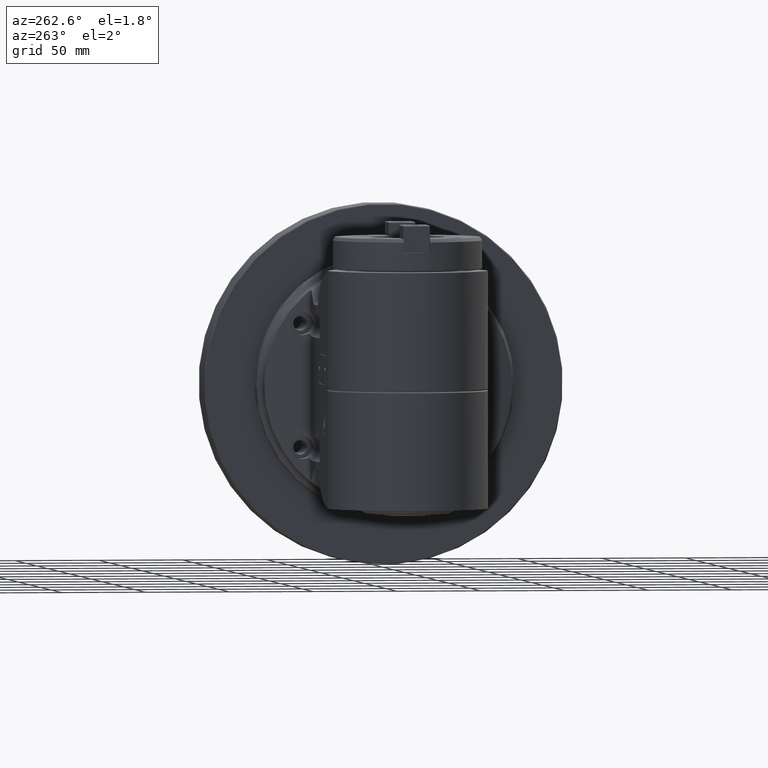
[diagram: clean part render]
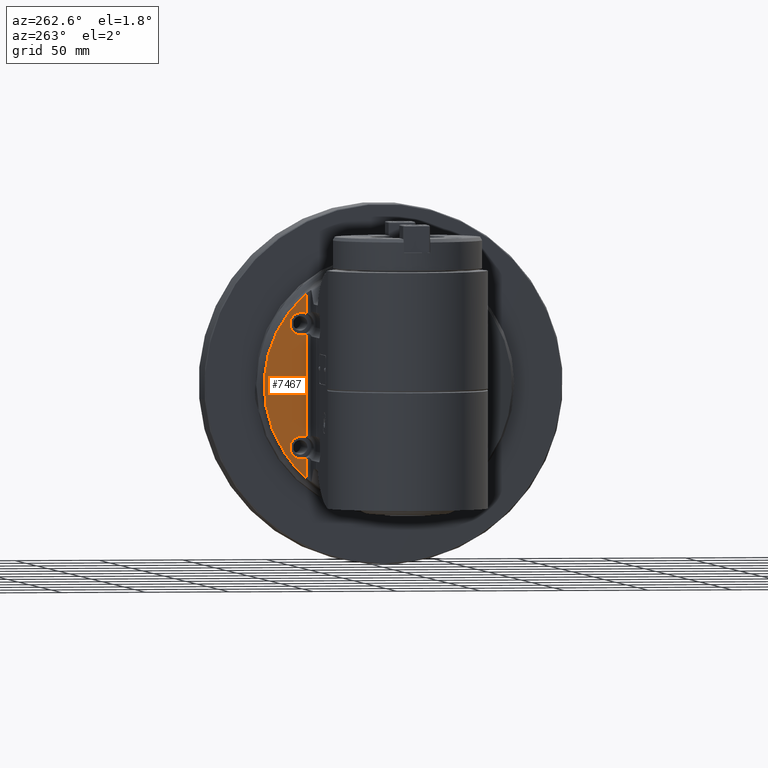
[diagram: same view with one face highlighted and labeled with its STEP entity id]
A machine part, auxiliary view. The second image highlights one B-rep face of the part: STEP entity #7467.
In plain terms, the highlighted planar face has unit normal (0.9397, -0.342, 0).
Its self-contained STEP definition (entity closure, byte-faithful):
#46=ELLIPSE('',#8143,78.7491551632184,74.);
#48=ELLIPSE('',#8173,7.18319996421249,6.75);
#49=ELLIPSE('',#8174,7.18319996421249,6.75);
#50=ELLIPSE('',#8175,7.18319996421249,6.75);
#51=ELLIPSE('',#8176,7.18319996421249,6.75);
#1047=FACE_OUTER_BOUND('',#1537,.T.);
#1537=EDGE_LOOP('',(#5622,#5623,#5624,#5625,#5626,#5627,#5628,#5629));
#2153=LINE('',#12510,#2652);
#2154=LINE('',#12532,#2653);
#2155=LINE('',#12537,#2654);
#2652=VECTOR('',#9542,11.37432940568);
#2653=VECTOR('',#9549,11.37432940568);
#2654=VECTOR('',#9554,60.72118127973);
#3268=VERTEX_POINT('',#12204);
#3269=VERTEX_POINT('',#12215);
#3304=VERTEX_POINT('',#12509);
#3306=VERTEX_POINT('',#12527);
#3307=VERTEX_POINT('',#12528);
#3308=VERTEX_POINT('',#12530);
#3309=VERTEX_POINT('',#12533);
#3310=VERTEX_POINT('',#12535);
#4109=EDGE_CURVE('',#3269,#3268,#46,.T.);
#4159=EDGE_CURVE('',#3304,#3268,#2153,.T.);
#4162=EDGE_CURVE('',#3306,#3307,#48,.T.);
#4163=EDGE_CURVE('',#3307,#3308,#49,.T.);
#4164=EDGE_CURVE('',#3269,#3308,#2154,.T.);
#4165=EDGE_CURVE('',#3304,#3309,#50,.T.);
#4166=EDGE_CURVE('',#3309,#3310,#51,.T.);
#4167=EDGE_CURVE('',#3306,#3310,#2155,.T.);
#5622=ORIENTED_EDGE('',*,*,#4162,.T.);
#5623=ORIENTED_EDGE('',*,*,#4163,.T.);
#5624=ORIENTED_EDGE('',*,*,#4164,.F.);
#5625=ORIENTED_EDGE('',*,*,#4109,.T.);
#5626=ORIENTED_EDGE('',*,*,#4159,.F.);
#5627=ORIENTED_EDGE('',*,*,#4165,.T.);
#5628=ORIENTED_EDGE('',*,*,#4166,.T.);
#5629=ORIENTED_EDGE('',*,*,#4167,.F.);
#7176=PLANE('',#8172);
#7467=ADVANCED_FACE('',(#1047),#7176,.F.);
#8143=AXIS2_PLACEMENT_3D('',#12216,#9475,#9476);
#8172=AXIS2_PLACEMENT_3D('',#12526,#9543,#9544);
#8173=AXIS2_PLACEMENT_3D('',#12529,#9545,#9546);
#8174=AXIS2_PLACEMENT_3D('',#12531,#9547,#9548);
#8175=AXIS2_PLACEMENT_3D('',#12534,#9550,#9551);
#8176=AXIS2_PLACEMENT_3D('',#12536,#9552,#9553);
#9475=DIRECTION('center_axis',(0.939692620785897,0.,-0.342020143325699));
#9476=DIRECTION('ref_axis',(0.342020143325699,-1.12785771207228E-16,0.939692620785897));
#9542=DIRECTION('',(3.794990426061E-14,1.,1.080713322977E-13));
#9543=DIRECTION('center_axis',(-0.939692620785897,0.,0.342020143325699));
#9544=DIRECTION('ref_axis',(-0.342020143325699,0.,-0.939692620785897));
#9545=DIRECTION('center_axis',(-0.939692620785897,0.,0.342020143325699));
#9546=DIRECTION('ref_axis',(0.342020143325699,0.,0.939692620785897));
#9547=DIRECTION('center_axis',(-0.939692620785897,0.,0.342020143325699));
#9548=DIRECTION('ref_axis',(0.342020143325699,0.,0.939692620785897));
#9549=DIRECTION('',(0.,1.,1.124441607722E-14));
#9550=DIRECTION('center_axis',(-0.939692620785897,0.,0.342020143325699));
#9551=DIRECTION('ref_axis',(0.342020143325699,0.,0.939692620785897));
#9552=DIRECTION('center_axis',(-0.939692620785897,0.,0.342020143325699));
#9553=DIRECTION('ref_axis',(0.342020143325699,0.,0.939692620785897));
#9554=DIRECTION('',(0.,1.,0.));
#12204=CARTESIAN_POINT('',(12.24206008372,54.43152261875,-50.1319194267));
#12215=CARTESIAN_POINT('',(12.24206008372,-54.43152261875,-50.1319194267));
#12216=CARTESIAN_POINT('Origin',(30.4885865416663,0.,0.));
#12509=CARTESIAN_POINT('',(12.24206008372,43.05719321307,-50.1319194267));
#12510=CARTESIAN_POINT('',(12.24206008372,43.05719321307,-50.1319194267));
#12526=CARTESIAN_POINT('Origin',(13.20000041402,-92.4000024,-47.5));
#12527=CARTESIAN_POINT('',(12.24206008372,-30.36059063987,-50.1319194267));
#12528=CARTESIAN_POINT('',(11.4071810082546,-43.45889192647,-52.4257308345));
#12529=CARTESIAN_POINT('Origin',(11.4071810082546,-36.70889192647,-52.4257308345));
#12530=CARTESIAN_POINT('',(12.24206008372,-43.05719321307,-50.1319194267));
#12531=CARTESIAN_POINT('Origin',(11.4071810082546,-36.70889192647,-52.4257308345));
#12532=CARTESIAN_POINT('',(12.24206008372,-54.43152261875,-50.1319194267));
#12533=CARTESIAN_POINT('',(11.4071810082546,29.95889192647,-52.4257308345));
#12534=CARTESIAN_POINT('Origin',(11.4071810082546,36.70889192647,-52.4257308345));
#12535=CARTESIAN_POINT('',(12.24206008372,30.36059063987,-50.1319194267));
#12536=CARTESIAN_POINT('Origin',(11.4071810082546,36.70889192647,-52.4257308345));
#12537=CARTESIAN_POINT('',(12.24206008372,-30.36059063987,-50.1319194267));